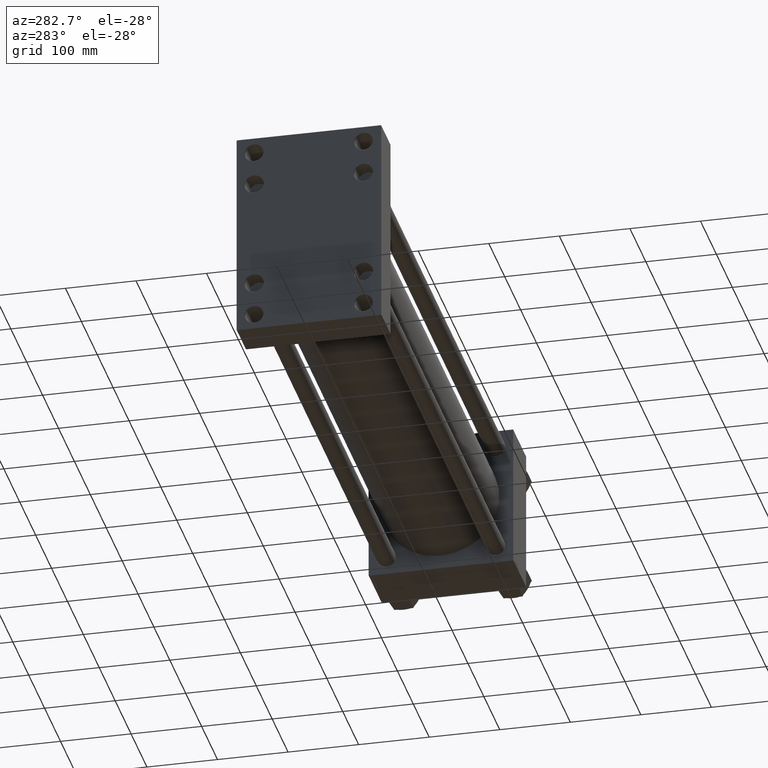
[diagram: clean part render]
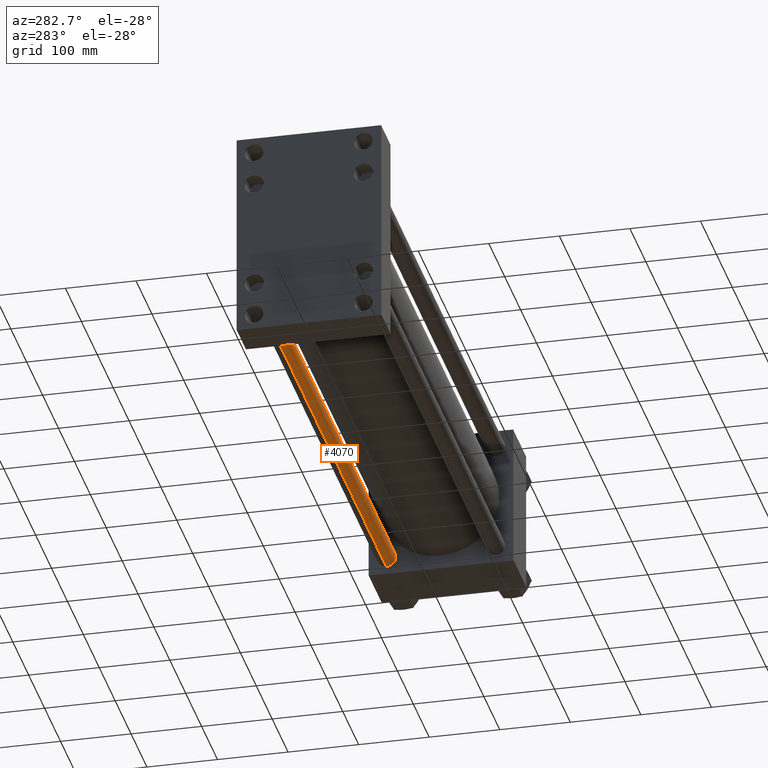
[diagram: same view with one face highlighted and labeled with its STEP entity id]
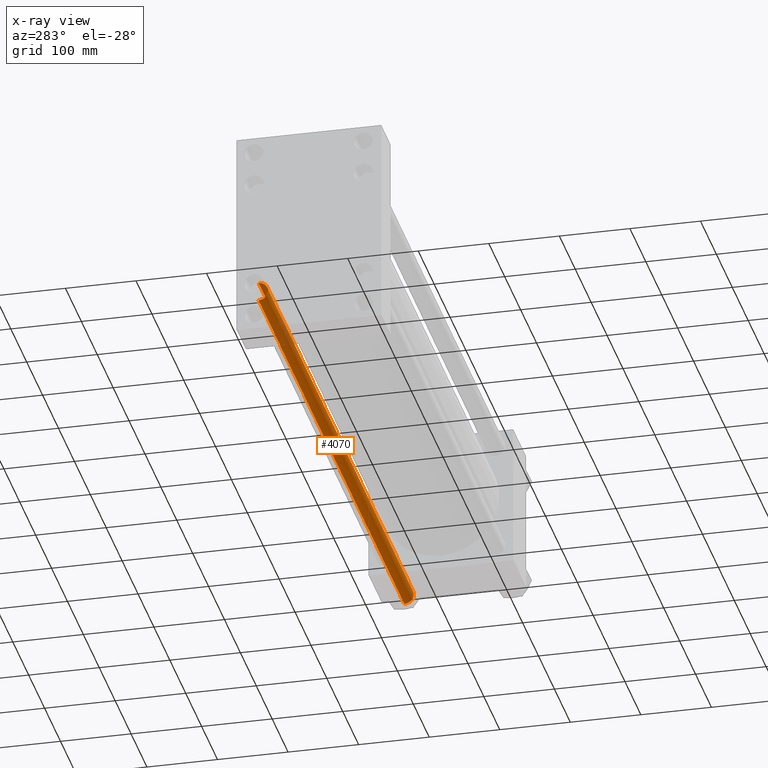
[diagram: x-ray of the same camera — body ghosted, the highlighted face saturated]
A machine part, auxiliary view. The second image highlights one B-rep face of the part: STEP entity #4070.
The next image is the same camera in x-ray: the body ghosted, the highlighted face saturated — about 6% of this face is hidden behind the body in this view.
In plain terms, the highlighted cylindrical surface (edge-blend (fillet) strip) has radius 13.5 mm, axis along (-1, 0, 0).
Its self-contained STEP definition (entity closure, byte-faithful):
#242 = VECTOR ( 'NONE', #15397, 1000.000000000000000 ) ;
#1347 = VECTOR ( 'NONE', #18169, 1000.000000000000000 ) ;
#1807 = CYLINDRICAL_SURFACE ( 'NONE', #50317, 13.50000000000000000 ) ;
#3759 = EDGE_CURVE ( 'NONE', #44933, #28783, #29947, .T. ) ;
#4070 = ADVANCED_FACE ( 'NONE', ( #21235 ), #1807, .T. ) ;
#9982 = CARTESIAN_POINT ( 'NONE',  ( -13.50000000000000000, 0.000000000000000000, 918.0000000000000000 ) ) ;
#9988 = CARTESIAN_POINT ( 'NONE',  ( 0.000000000000000000, 0.000000000000000000, 918.0000000000000000 ) ) ;
#13452 = CARTESIAN_POINT ( 'NONE',  ( 13.50000000000000000, 1.653273178848926867E-15, 917.5000000000000000 ) ) ;
#13838 = DIRECTION ( 'NONE',  ( -0.000000000000000000, -0.000000000000000000, -1.000000000000000000 ) ) ;
#13873 = EDGE_LOOP ( 'NONE', ( #23157, #47389, #47333, #45844 ) ) ;
#15397 = DIRECTION ( 'NONE',  ( -0.000000000000000000, -0.000000000000000000, -1.000000000000000000 ) ) ;
#18169 = DIRECTION ( 'NONE',  ( -0.000000000000000000, -0.000000000000000000, -1.000000000000000000 ) ) ;
#20915 = CARTESIAN_POINT ( 'NONE',  ( 0.000000000000000000, 0.000000000000000000, 0.5000000000000559552 ) ) ;
#21235 = FACE_OUTER_BOUND ( 'NONE', #13873, .T. ) ;
#21951 = DIRECTION ( 'NONE',  ( 1.000000000000000000, 0.000000000000000000, 0.000000000000000000 ) ) ;
#22255 = LINE ( 'NONE', #9982, #1347 ) ;
#22567 = EDGE_CURVE ( 'NONE', #37718, #44933, #23561, .T. ) ;
#22688 = DIRECTION ( 'NONE',  ( 0.000000000000000000, 0.000000000000000000, -1.000000000000000000 ) ) ;
#23157 = ORIENTED_EDGE ( 'NONE', *, *, #40316, .T. ) ;
#23561 = LINE ( 'NONE', #26888, #242 ) ;
#24494 = DIRECTION ( 'NONE',  ( 1.000000000000000000, 0.000000000000000000, 0.000000000000000000 ) ) ;
#25413 = EDGE_CURVE ( 'NONE', #37169, #28783, #22255, .T. ) ;
#26888 = CARTESIAN_POINT ( 'NONE',  ( 13.50000000000000000, 1.653273178848926867E-15, 918.0000000000000000 ) ) ;
#28783 = VERTEX_POINT ( 'NONE', #46295 ) ;
#29397 = DIRECTION ( 'NONE',  ( -1.000000000000000000, 0.000000000000000000, 0.000000000000000000 ) ) ;
#29947 = CIRCLE ( 'NONE', #41378, 13.50000000000000000 ) ;
#30428 = CARTESIAN_POINT ( 'NONE',  ( 13.50000000000000000, 1.653273178848926867E-15, 0.5000000000000559552 ) ) ;
#35978 = DIRECTION ( 'NONE',  ( -0.000000000000000000, -0.000000000000000000, 1.000000000000000000 ) ) ;
#37169 = VERTEX_POINT ( 'NONE', #47728 ) ;
#37521 = CARTESIAN_POINT ( 'NONE',  ( 0.000000000000000000, 0.000000000000000000, 917.5000000000000000 ) ) ;
#37718 = VERTEX_POINT ( 'NONE', #13452 ) ;
#40316 = EDGE_CURVE ( 'NONE', #37169, #37718, #48207, .T. ) ;
#41378 = AXIS2_PLACEMENT_3D ( 'NONE', #20915, #35978, #24494 ) ;
#43330 = AXIS2_PLACEMENT_3D ( 'NONE', #37521, #22688, #21951 ) ;
#44933 = VERTEX_POINT ( 'NONE', #30428 ) ;
#45844 = ORIENTED_EDGE ( 'NONE', *, *, #25413, .F. ) ;
#46295 = CARTESIAN_POINT ( 'NONE',  ( -13.50000000000000000, 0.000000000000000000, 0.5000000000000559552 ) ) ;
#47333 = ORIENTED_EDGE ( 'NONE', *, *, #3759, .T. ) ;
#47389 = ORIENTED_EDGE ( 'NONE', *, *, #22567, .T. ) ;
#47728 = CARTESIAN_POINT ( 'NONE',  ( -13.50000000000000000, 0.000000000000000000, 917.5000000000000000 ) ) ;
#48207 = CIRCLE ( 'NONE', #43330, 13.50000000000000000 ) ;
#50317 = AXIS2_PLACEMENT_3D ( 'NONE', #9988, #13838, #29397 ) ;